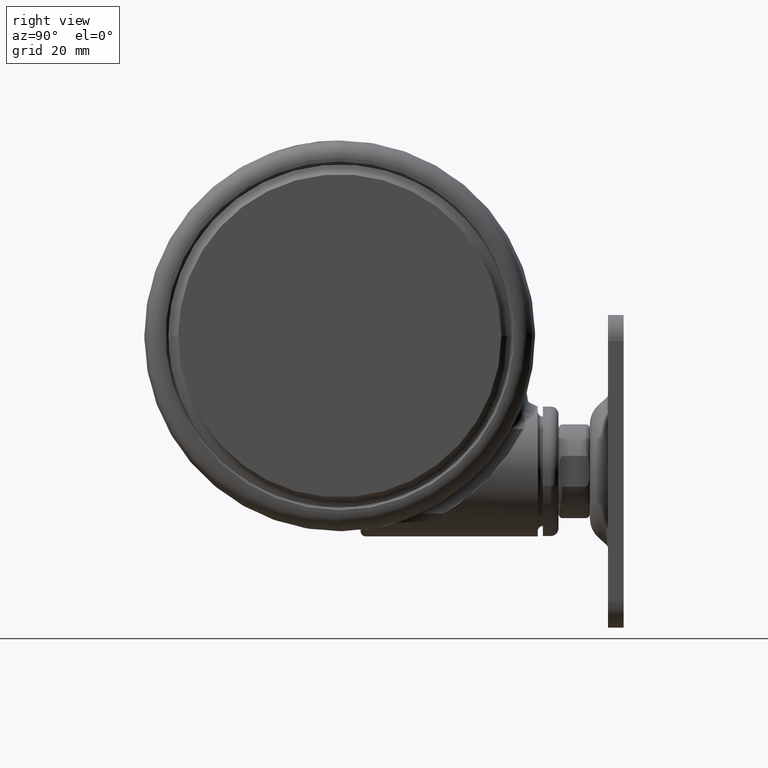
[diagram: clean part render]
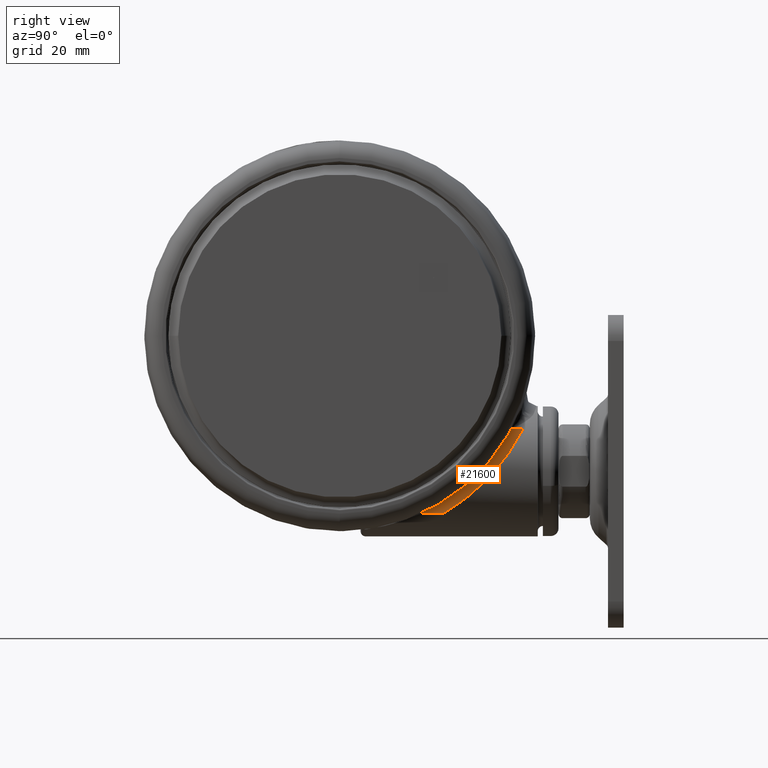
[diagram: same view with one face highlighted and labeled with its STEP entity id]
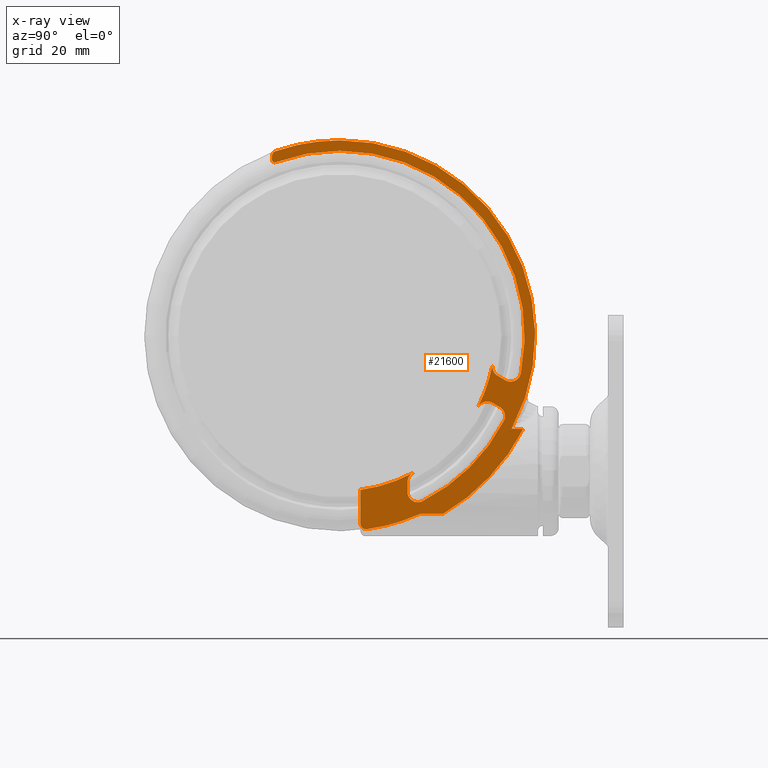
[diagram: x-ray of the same camera — body ghosted, the highlighted face saturated]
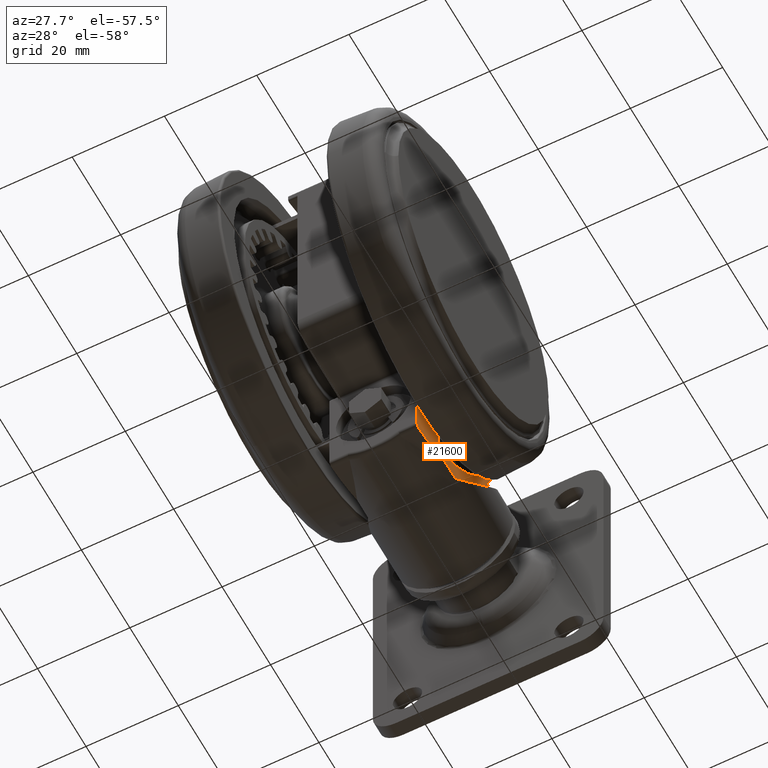
[diagram: same view with one face highlighted and labeled with its STEP entity id]
A machine part, right view. The second image highlights one B-rep face of the part: STEP entity #21600.
The next image is the same camera in x-ray: the body ghosted, the highlighted face saturated — about 0% of this face is hidden behind the body in this view.
A second angle (auxiliary view) of the same face is appended — the face is thin or edge-on in the first view.
In plain terms, the highlighted planar face has unit normal (-1, 0, 0).
Its self-contained STEP definition (entity closure, byte-faithful):
#588 = EDGE_CURVE ( 'NONE', #41972, #9072, #43280, .T. ) ;
#720 = AXIS2_PLACEMENT_3D ( 'NONE', #29062, #1765, #33597 ) ;
#792 = DIRECTION ( 'NONE',  ( 0.0000000000000000000, -0.0000000000000000000, -1.000000000000000000 ) ) ;
#862 = CARTESIAN_POINT ( 'NONE',  ( -14.05808477237056700, 26.33235182304920500, -14.34999999999999600 ) ) ;
#935 = ORIENTED_EDGE ( 'NONE', *, *, #24910, .F. ) ;
#1131 = ORIENTED_EDGE ( 'NONE', *, *, #29958, .F. ) ;
#1573 = DIRECTION ( 'NONE',  ( -0.0000000000000000000, 0.0000000000000000000, 1.000000000000000000 ) ) ;
#1612 = EDGE_CURVE ( 'NONE', #26068, #55462, #29674, .T. ) ;
#1765 = DIRECTION ( 'NONE',  ( -0.0000000000000000000, 0.0000000000000000000, 1.000000000000000000 ) ) ;
#1863 = DIRECTION ( 'NONE',  ( 3.275157922644210600E-015, -1.000000000000000000, 0.0000000000000000000 ) ) ;
#2355 = ORIENTED_EDGE ( 'NONE', *, *, #588, .F. ) ;
#2409 = DIRECTION ( 'NONE',  ( 0.0000000000000000000, -0.0000000000000000000, -1.000000000000000000 ) ) ;
#2427 = CARTESIAN_POINT ( 'NONE',  ( -13.00000000000010700, 33.03407331831780900, -14.34999999999999600 ) ) ;
#2588 = DIRECTION ( 'NONE',  ( 0.0000000000000000000, -0.0000000000000000000, -1.000000000000000000 ) ) ;
#2703 = DIRECTION ( 'NONE',  ( 0.0000000000000000000, -0.0000000000000000000, -1.000000000000000000 ) ) ;
#2885 = CIRCLE ( 'NONE', #9080, 37.50000000000000000 ) ;
#2963 = AXIS2_PLACEMENT_3D ( 'NONE', #37020, #9799, #41594 ) ;
#3851 = CARTESIAN_POINT ( 'NONE',  ( -4.000000000000096800, 29.58077923246783700, -14.34999999999999600 ) ) ;
#3855 = CARTESIAN_POINT ( 'NONE',  ( -28.30344973734159100, 12.60606836098540700, -14.34999999999999600 ) ) ;
#4542 = DIRECTION ( 'NONE',  ( 3.275157922644210600E-015, -1.000000000000000000, 0.0000000000000000000 ) ) ;
#4545 = EDGE_CURVE ( 'NONE', #37598, #17954, #54250, .T. ) ;
#4670 = ORIENTED_EDGE ( 'NONE', *, *, #24920, .F. ) ;
#4695 = CARTESIAN_POINT ( 'NONE',  ( 0.0000000000000000000, 0.0000000000000000000, -14.34999999999999600 ) ) ;
#4764 = ORIENTED_EDGE ( 'NONE', *, *, #49392, .T. ) ;
#4888 = VERTEX_POINT ( 'NONE', #57787 ) ;
#5150 = CARTESIAN_POINT ( 'NONE',  ( -19.90164817295301000, 34.11999999999993300, -14.34999999999999600 ) ) ;
#5335 = ORIENTED_EDGE ( 'NONE', *, *, #50924, .T. ) ;
#5380 = CARTESIAN_POINT ( 'NONE',  ( -28.30344973734159800, 14.60606836098540700, -14.34999999999999600 ) ) ;
#5961 = VERTEX_POINT ( 'NONE', #43418 ) ;
#6457 = CIRCLE ( 'NONE', #30181, 1.999999999999998200 ) ;
#6629 = ORIENTED_EDGE ( 'NONE', *, *, #17383, .T. ) ;
#6728 = VECTOR ( 'NONE', #33585, 1000.000000000000000 ) ;
#6877 = EDGE_CURVE ( 'NONE', #37598, #4888, #28518, .T. ) ;
#7009 = DIRECTION ( 'NONE',  ( -3.275157922644210200E-015, 1.000000000000000000, 0.0000000000000000000 ) ) ;
#7014 = CIRCLE ( 'NONE', #23743, 1.000000000000000900 ) ;
#7186 = VERTEX_POINT ( 'NONE', #30077 ) ;
#7820 = CARTESIAN_POINT ( 'NONE',  ( -5.136986301369981700, 37.14648532148818600, -14.34999999999999600 ) ) ;
#8132 = DIRECTION ( 'NONE',  ( -0.0000000000000000000, 0.0000000000000000000, 1.000000000000000000 ) ) ;
#8791 = ORIENTED_EDGE ( 'NONE', *, *, #34759, .T. ) ;
#9072 = VERTEX_POINT ( 'NONE', #21969 ) ;
#9080 = AXIS2_PLACEMENT_3D ( 'NONE', #47056, #19882, #51606 ) ;
#9302 = DIRECTION ( 'NONE',  ( 3.275157922644210600E-015, -1.000000000000000000, 0.0000000000000000000 ) ) ;
#9603 = EDGE_CURVE ( 'NONE', #41972, #51496, #21796, .T. ) ;
#9784 = PLANE ( 'NONE',  #12737 ) ;
#9799 = DIRECTION ( 'NONE',  ( 0.0000000000000000000, 0.0000000000000000000, 1.000000000000000000 ) ) ;
#9969 = DIRECTION ( 'NONE',  ( 3.469446951953614200E-015, -1.000000000000000000, 0.0000000000000000000 ) ) ;
#10187 = CARTESIAN_POINT ( 'NONE',  ( -35.22152182969960400, 17.87999999999988500, -14.34999999999999600 ) ) ;
#10330 = ORIENTED_EDGE ( 'NONE', *, *, #56864, .F. ) ;
#10734 = VERTEX_POINT ( 'NONE', #23685 ) ;
#10878 = ORIENTED_EDGE ( 'NONE', *, *, #51337, .T. ) ;
#11211 = ORIENTED_EDGE ( 'NONE', *, *, #31193, .T. ) ;
#11550 = VERTEX_POINT ( 'NONE', #7820 ) ;
#12706 = EDGE_CURVE ( 'NONE', #14136, #57935, #30069, .T. ) ;
#12718 = ORIENTED_EDGE ( 'NONE', *, *, #14902, .F. ) ;
#12737 = AXIS2_PLACEMENT_3D ( 'NONE', #28080, #792, #32641 ) ;
#13329 = AXIS2_PLACEMENT_3D ( 'NONE', #53441, #26280, #58035 ) ;
#13538 = CARTESIAN_POINT ( 'NONE',  ( 13.00000000000011200, -34.47100230628630900, -14.34999999999999600 ) ) ;
#13816 = DIRECTION ( 'NONE',  ( 3.275157922644210200E-015, -1.000000000000000000, 0.0000000000000000000 ) ) ;
#14028 = VERTEX_POINT ( 'NONE', #35187 ) ;
#14136 = VERTEX_POINT ( 'NONE', #54041 ) ;
#14172 = CARTESIAN_POINT ( 'NONE',  ( 0.0000000000000000000, 0.0000000000000000000, -14.34999999999999600 ) ) ;
#14415 = EDGE_LOOP ( 'NONE', ( #1131, #35232, #33952, #935, #38801, #31520, #2355, #32364, #4670, #6629, #8791, #12718, #32766, #41663, #23973, #4764, #41475, #11211, #35717, #27965, #5335, #10330, #10878, #49233, #16205, #36969, #21724, #30453, #33174, #33574 ) ) ;
#14902 = EDGE_CURVE ( 'NONE', #20528, #5961, #33207, .T. ) ;
#15317 = DIRECTION ( 'NONE',  ( 0.0000000000000000000, -0.0000000000000000000, -1.000000000000000000 ) ) ;
#15453 = DIRECTION ( 'NONE',  ( 0.0000000000000000000, -0.0000000000000000000, -1.000000000000000000 ) ) ;
#15624 = AXIS2_PLACEMENT_3D ( 'NONE', #56361, #29152, #1863 ) ;
#15654 = CARTESIAN_POINT ( 'NONE',  ( 12.50000000000011200, -33.76018364878955700, -14.34999999999999600 ) ) ;
#15784 = LINE ( 'NONE', #2427, #38482 ) ;
#16087 = AXIS2_PLACEMENT_3D ( 'NONE', #49058, #21903, #53653 ) ;
#16205 = ORIENTED_EDGE ( 'NONE', *, *, #17207, .T. ) ;
#16402 = AXIS2_PLACEMENT_3D ( 'NONE', #42517, #15317, #47068 ) ;
#16860 = VERTEX_POINT ( 'NONE', #862 ) ;
#16971 = AXIS2_PLACEMENT_3D ( 'NONE', #59028, #31788, #4542 ) ;
#17207 = EDGE_CURVE ( 'NONE', #34529, #10734, #22358, .T. ) ;
#17383 = EDGE_CURVE ( 'NONE', #45787, #21031, #21598, .T. ) ;
#17954 = VERTEX_POINT ( 'NONE', #40934 ) ;
#18779 = DIRECTION ( 'NONE',  ( 3.275157922644209800E-015, -1.000000000000000000, 0.0000000000000000000 ) ) ;
#19048 = CARTESIAN_POINT ( 'NONE',  ( -34.75872781354956900, 7.216705673891416600, -14.34999999999999600 ) ) ;
#19356 = EDGE_CURVE ( 'NONE', #20528, #4888, #49151, .T. ) ;
#19882 = DIRECTION ( 'NONE',  ( 0.0000000000000000000, -0.0000000000000000000, -1.000000000000000000 ) ) ;
#20062 = LINE ( 'NONE', #54954, #42794 ) ;
#20230 = DIRECTION ( 'NONE',  ( 3.469446951953611000E-015, -1.000000000000000000, 0.0000000000000000000 ) ) ;
#20528 = VERTEX_POINT ( 'NONE', #36130 ) ;
#20538 = DIRECTION ( 'NONE',  ( 0.0000000000000000000, 0.0000000000000000000, 1.000000000000000000 ) ) ;
#20755 = EDGE_CURVE ( 'NONE', #55462, #9072, #37670, .T. ) ;
#21031 = VERTEX_POINT ( 'NONE', #3855 ) ;
#21126 = VECTOR ( 'NONE', #30490, 1000.000000000000100 ) ;
#21598 = CIRCLE ( 'NONE', #27408, 2.000000000000000000 ) ;
#21600 = ADVANCED_FACE ( 'NONE', ( #56759 ), #9784, .F. ) ;
#21724 = ORIENTED_EDGE ( 'NONE', *, *, #35876, .T. ) ;
#21796 = CIRCLE ( 'NONE', #13329, 2.000000000000000000 ) ;
#21903 = DIRECTION ( 'NONE',  ( 0.0000000000000000000, -0.0000000000000000000, -1.000000000000000000 ) ) ;
#21969 = CARTESIAN_POINT ( 'NONE',  ( -31.80048962687072800, 8.542181513917125100, -14.34999999999999600 ) ) ;
#22046 = CARTESIAN_POINT ( 'NONE',  ( -29.73390573391090200, 15.43194251566860200, -14.34999999999999600 ) ) ;
#22358 = CIRCLE ( 'NONE', #46749, 39.50000000000000000 ) ;
#22373 = DIRECTION ( 'NONE',  ( 0.0000000000000000000, 0.0000000000000000000, 1.000000000000000000 ) ) ;
#22938 = VERTEX_POINT ( 'NONE', #40148 ) ;
#23318 = CARTESIAN_POINT ( 'NONE',  ( 0.0000000000000000000, 0.0000000000000000000, -14.34999999999999600 ) ) ;
#23685 = CARTESIAN_POINT ( 'NONE',  ( -35.22152182969960400, 17.87999999999988500, -14.34999999999999600 ) ) ;
#23743 = AXIS2_PLACEMENT_3D ( 'NONE', #35341, #8132, #39928 ) ;
#23847 = CARTESIAN_POINT ( 'NONE',  ( -29.32648716390971800, 5.565936635018193400, -14.34999999999999600 ) ) ;
#23865 = CARTESIAN_POINT ( 'NONE',  ( -19.90164817295301000, 34.11999999999993300, -14.34999999999999600 ) ) ;
#23973 = ORIENTED_EDGE ( 'NONE', *, *, #4545, .T. ) ;
#24267 = CARTESIAN_POINT ( 'NONE',  ( -26.52615305053834400, 13.68888981398475300, -14.34999999999999600 ) ) ;
#24373 = AXIS2_PLACEMENT_3D ( 'NONE', #47715, #20538, #52274 ) ;
#24743 = VERTEX_POINT ( 'NONE', #40224 ) ;
#24811 = CIRCLE ( 'NONE', #46584, 1.000000000000000900 ) ;
#24910 = EDGE_CURVE ( 'NONE', #26068, #24743, #55061, .T. ) ;
#24919 = VERTEX_POINT ( 'NONE', #41415 ) ;
#24920 = EDGE_CURVE ( 'NONE', #45787, #51496, #53592, .T. ) ;
#25141 = CIRCLE ( 'NONE', #24373, 29.85000000000000100 ) ;
#25369 = VERTEX_POINT ( 'NONE', #27063 ) ;
#26068 = VERTEX_POINT ( 'NONE', #19048 ) ;
#26124 = AXIS2_PLACEMENT_3D ( 'NONE', #49534, #22373, #54120 ) ;
#26149 = EDGE_CURVE ( 'NONE', #22938, #14136, #50637, .T. ) ;
#26280 = DIRECTION ( 'NONE',  ( 0.0000000000000000000, -0.0000000000000000000, -1.000000000000000000 ) ) ;
#26535 = CIRCLE ( 'NONE', #720, 0.5000000000000004400 ) ;
#26629 = DIRECTION ( 'NONE',  ( 3.469446951953614200E-015, -1.000000000000000000, 0.0000000000000000000 ) ) ;
#26717 = DIRECTION ( 'NONE',  ( 0.0000000000000000000, 0.0000000000000000000, 1.000000000000000000 ) ) ;
#26882 = VECTOR ( 'NONE', #45899, 1000.000000000000000 ) ;
#27063 = CARTESIAN_POINT ( 'NONE',  ( -13.00000000000009100, 28.09666350298550700, -14.34999999999999600 ) ) ;
#27114 = VERTEX_POINT ( 'NONE', #13538 ) ;
#27408 = AXIS2_PLACEMENT_3D ( 'NONE', #5380, #37196, #9969 ) ;
#27452 = AXIS2_PLACEMENT_3D ( 'NONE', #29681, #2409, #34233 ) ;
#27856 = DIRECTION ( 'NONE',  ( 3.275157922644210600E-015, -1.000000000000000000, 0.0000000000000000000 ) ) ;
#27965 = ORIENTED_EDGE ( 'NONE', *, *, #48005, .F. ) ;
#28080 = CARTESIAN_POINT ( 'NONE',  ( 0.0000000000000000000, 0.0000000000000000000, -14.34999999999999600 ) ) ;
#28222 = LINE ( 'NONE', #10187, #48039 ) ;
#28322 = EDGE_CURVE ( 'NONE', #22938, #27114, #7014, .T. ) ;
#28518 = CIRCLE ( 'NONE', #26124, 35.50000000000000000 ) ;
#28721 = AXIS2_PLACEMENT_3D ( 'NONE', #29982, #2703, #34525 ) ;
#28860 = CARTESIAN_POINT ( 'NONE',  ( -5.000000000000119000, 36.15591237958183500, -14.34999999999999600 ) ) ;
#29062 = CARTESIAN_POINT ( 'NONE',  ( 12.50000000000011200, -33.76018364878955700, -14.34999999999999600 ) ) ;
#29115 = DIRECTION ( 'NONE',  ( -0.8660254037844411500, 0.4999999999999957300, 0.0000000000000000000 ) ) ;
#29149 = AXIS2_PLACEMENT_3D ( 'NONE', #23318, #55067, #27856 ) ;
#29152 = DIRECTION ( 'NONE',  ( 0.0000000000000000000, -0.0000000000000000000, -1.000000000000000000 ) ) ;
#29674 = CIRCLE ( 'NONE', #16402, 2.000000000000000000 ) ;
#29681 = CARTESIAN_POINT ( 'NONE',  ( -15.00000000000009100, 28.09666350298550000, -14.34999999999999600 ) ) ;
#29870 = CARTESIAN_POINT ( 'NONE',  ( -15.00000000000009800, 29.95413160150025100, -14.34999999999999600 ) ) ;
#29958 = EDGE_CURVE ( 'NONE', #7186, #27114, #43004, .T. ) ;
#29982 = CARTESIAN_POINT ( 'NONE',  ( -28.30344973734159800, 14.60606836098540700, -14.34999999999999600 ) ) ;
#30069 = CIRCLE ( 'NONE', #58754, 37.50000000000000000 ) ;
#30077 = CARTESIAN_POINT ( 'NONE',  ( 13.00000000000011000, -33.76018364878955700, -14.34999999999999600 ) ) ;
#30181 = AXIS2_PLACEMENT_3D ( 'NONE', #29870, #2588, #34418 ) ;
#30453 = ORIENTED_EDGE ( 'NONE', *, *, #12706, .F. ) ;
#30490 = DIRECTION ( 'NONE',  ( 0.8660254037844400400, -0.4999999999999974500, 0.0000000000000000000 ) ) ;
#30591 = EDGE_CURVE ( 'NONE', #7186, #43009, #38659, .T. ) ;
#31192 = EDGE_CURVE ( 'NONE', #47908, #16860, #25141, .T. ) ;
#31193 = EDGE_CURVE ( 'NONE', #25369, #16860, #58541, .T. ) ;
#31520 = ORIENTED_EDGE ( 'NONE', *, *, #20755, .T. ) ;
#31603 = EDGE_CURVE ( 'NONE', #43009, #24743, #26535, .T. ) ;
#31711 = AXIS2_PLACEMENT_3D ( 'NONE', #42645, #15453, #47191 ) ;
#31788 = DIRECTION ( 'NONE',  ( 0.0000000000000000000, 0.0000000000000000000, 1.000000000000000000 ) ) ;
#32364 = ORIENTED_EDGE ( 'NONE', *, *, #9603, .T. ) ;
#32493 = CARTESIAN_POINT ( 'NONE',  ( 12.50000000000011000, -33.26018364878955700, -14.34999999999999600 ) ) ;
#32641 = DIRECTION ( 'NONE',  ( 3.275157922644210200E-015, -1.000000000000000000, 0.0000000000000000000 ) ) ;
#32651 = VECTOR ( 'NONE', #29115, 1000.000000000000000 ) ;
#32766 = ORIENTED_EDGE ( 'NONE', *, *, #19356, .T. ) ;
#33174 = ORIENTED_EDGE ( 'NONE', *, *, #26149, .F. ) ;
#33207 = LINE ( 'NONE', #39402, #21126 ) ;
#33404 = DIRECTION ( 'NONE',  ( 2.602085213965208300E-015, -1.000000000000000000, 0.0000000000000000000 ) ) ;
#33574 = ORIENTED_EDGE ( 'NONE', *, *, #28322, .T. ) ;
#33585 = DIRECTION ( 'NONE',  ( 3.309731685012663500E-015, -1.000000000000000000, 0.0000000000000000000 ) ) ;
#33597 = DIRECTION ( 'NONE',  ( 3.469446951953611000E-015, -1.000000000000000000, 0.0000000000000000000 ) ) ;
#33952 = ORIENTED_EDGE ( 'NONE', *, *, #31603, .T. ) ;
#34233 = DIRECTION ( 'NONE',  ( 3.469446951953611000E-015, -1.000000000000000000, 0.0000000000000000000 ) ) ;
#34418 = DIRECTION ( 'NONE',  ( 3.469446951953617300E-015, -1.000000000000000000, 0.0000000000000000000 ) ) ;
#34525 = DIRECTION ( 'NONE',  ( 3.469446951953614200E-015, -1.000000000000000000, 0.0000000000000000000 ) ) ;
#34529 = VERTEX_POINT ( 'NONE', #23865 ) ;
#34759 = EDGE_CURVE ( 'NONE', #21031, #5961, #39671, .T. ) ;
#35187 = CARTESIAN_POINT ( 'NONE',  ( -13.00000000000009800, 29.95413160150025800, -14.34999999999999600 ) ) ;
#35232 = ORIENTED_EDGE ( 'NONE', *, *, #30591, .T. ) ;
#35341 = CARTESIAN_POINT ( 'NONE',  ( 12.00000000000011400, -34.47100230628630900, -14.34999999999999600 ) ) ;
#35717 = ORIENTED_EDGE ( 'NONE', *, *, #31192, .F. ) ;
#35876 = EDGE_CURVE ( 'NONE', #44617, #57935, #40379, .T. ) ;
#35894 = EDGE_CURVE ( 'NONE', #24919, #34529, #55317, .T. ) ;
#36130 = CARTESIAN_POINT ( 'NONE',  ( -30.73390573391089500, 13.69989170809971800, -14.34999999999999600 ) ) ;
#36508 = DIRECTION ( 'NONE',  ( 0.0000000000000000000, -0.0000000000000000000, -1.000000000000000000 ) ) ;
#36699 = CARTESIAN_POINT ( 'NONE',  ( -32.96294282979000200, 17.87999999999989200, -14.34999999999999600 ) ) ;
#36884 = AXIS2_PLACEMENT_3D ( 'NONE', #15654, #47394, #20230 ) ;
#36965 = CARTESIAN_POINT ( 'NONE',  ( -30.29141092698577300, 7.670914520310240900, -14.34999999999999600 ) ) ;
#36969 = ORIENTED_EDGE ( 'NONE', *, *, #45266, .T. ) ;
#37020 = CARTESIAN_POINT ( 'NONE',  ( 0.0000000000000000000, 0.0000000000000000000, -14.34999999999999600 ) ) ;
#37196 = DIRECTION ( 'NONE',  ( 0.0000000000000000000, -0.0000000000000000000, -1.000000000000000000 ) ) ;
#37401 = DIRECTION ( 'NONE',  ( 1.000000000000000000, 6.347396663987760900E-015, 0.0000000000000000000 ) ) ;
#37406 = CARTESIAN_POINT ( 'NONE',  ( -15.89552238805980300, 31.74243796576895000, -14.34999999999999600 ) ) ;
#37598 = VERTEX_POINT ( 'NONE', #37406 ) ;
#37670 = CIRCLE ( 'NONE', #31711, 2.000000000000000000 ) ;
#38482 = VECTOR ( 'NONE', #7009, 1000.000000000000000 ) ;
#38659 = CIRCLE ( 'NONE', #36884, 0.5000000000000004400 ) ;
#38801 = ORIENTED_EDGE ( 'NONE', *, *, #1612, .T. ) ;
#39402 = CARTESIAN_POINT ( 'NONE',  ( -27.42353499972799100, 11.78864827360177100, -14.34999999999999600 ) ) ;
#39671 = CIRCLE ( 'NONE', #28721, 2.000000000000000000 ) ;
#39928 = DIRECTION ( 'NONE',  ( 0.0000000000000000000, -1.000000000000000000, 0.0000000000000000000 ) ) ;
#40043 = CARTESIAN_POINT ( 'NONE',  ( -4.000000000000119000, 36.15591237958183500, -14.34999999999999600 ) ) ;
#40148 = CARTESIAN_POINT ( 'NONE',  ( 12.32876712328777700, -35.41541332837635300, -14.34999999999999600 ) ) ;
#40224 = CARTESIAN_POINT ( 'NONE',  ( 12.32638888888901000, -33.29129220922301600, -14.34999999999999600 ) ) ;
#40379 = CIRCLE ( 'NONE', #29149, 37.50000000000000000 ) ;
#40934 = CARTESIAN_POINT ( 'NONE',  ( -15.00000000000010500, 31.95413160150025100, -14.34999999999999600 ) ) ;
#41324 = VERTEX_POINT ( 'NONE', #40043 ) ;
#41415 = CARTESIAN_POINT ( 'NONE',  ( -15.55877887239235900, 34.11999999999994800, -14.34999999999999600 ) ) ;
#41475 = ORIENTED_EDGE ( 'NONE', *, *, #48149, .F. ) ;
#41594 = DIRECTION ( 'NONE',  ( 3.275157922644210600E-015, -1.000000000000000000, 0.0000000000000000000 ) ) ;
#41663 = ORIENTED_EDGE ( 'NONE', *, *, #6877, .F. ) ;
#41972 = VERTEX_POINT ( 'NONE', #36965 ) ;
#42517 = CARTESIAN_POINT ( 'NONE',  ( -32.80048962687067900, 6.810130706348242100, -14.34999999999999600 ) ) ;
#42645 = CARTESIAN_POINT ( 'NONE',  ( -32.80048962687067900, 6.810130706348242100, -14.34999999999999600 ) ) ;
#42729 = CARTESIAN_POINT ( 'NONE',  ( 13.00000000000011400, -35.17456467392305800, -14.34999999999999600 ) ) ;
#42794 = VECTOR ( 'NONE', #13816, 1000.000000000000000 ) ;
#43004 = LINE ( 'NONE', #42729, #6728 ) ;
#43009 = VERTEX_POINT ( 'NONE', #32493 ) ;
#43280 = LINE ( 'NONE', #56324, #32651 ) ;
#43418 = CARTESIAN_POINT ( 'NONE',  ( -29.30344973734159500, 12.87401755341652400, -14.34999999999999600 ) ) ;
#44591 = AXIS2_PLACEMENT_3D ( 'NONE', #22046, #53798, #26629 ) ;
#44617 = VERTEX_POINT ( 'NONE', #36699 ) ;
#45266 = EDGE_CURVE ( 'NONE', #10734, #44617, #28222, .T. ) ;
#45380 = CIRCLE ( 'NONE', #16971, 37.50000000000000000 ) ;
#45787 = VERTEX_POINT ( 'NONE', #24267 ) ;
#45899 = DIRECTION ( 'NONE',  ( -1.000000000000000000, -1.677390772937115200E-015, 0.0000000000000000000 ) ) ;
#45954 = DIRECTION ( 'NONE',  ( 0.0000000000000000000, 0.0000000000000000000, 1.000000000000000000 ) ) ;
#46584 = AXIS2_PLACEMENT_3D ( 'NONE', #28860, #1573, #33404 ) ;
#46749 = AXIS2_PLACEMENT_3D ( 'NONE', #53903, #26717, #58482 ) ;
#47056 = CARTESIAN_POINT ( 'NONE',  ( 0.0000000000000000000, 0.0000000000000000000, -14.34999999999999600 ) ) ;
#47068 = DIRECTION ( 'NONE',  ( 3.469446951953614200E-015, -1.000000000000000000, 0.0000000000000000000 ) ) ;
#47191 = DIRECTION ( 'NONE',  ( 3.469446951953614200E-015, -1.000000000000000000, 0.0000000000000000000 ) ) ;
#47394 = DIRECTION ( 'NONE',  ( -0.0000000000000000000, 0.0000000000000000000, 1.000000000000000000 ) ) ;
#47715 = CARTESIAN_POINT ( 'NONE',  ( 0.0000000000000000000, 0.0000000000000000000, -14.34999999999999600 ) ) ;
#47908 = VERTEX_POINT ( 'NONE', #3851 ) ;
#48005 = EDGE_CURVE ( 'NONE', #41324, #47908, #20062, .T. ) ;
#48039 = VECTOR ( 'NONE', #37401, 1000.000000000000000 ) ;
#48127 = VERTEX_POINT ( 'NONE', #55525 ) ;
#48149 = EDGE_CURVE ( 'NONE', #25369, #14028, #15784, .T. ) ;
#49058 = CARTESIAN_POINT ( 'NONE',  ( -15.00000000000009800, 29.95413160150025100, -14.34999999999999600 ) ) ;
#49151 = CIRCLE ( 'NONE', #44591, 2.000000000000000000 ) ;
#49233 = ORIENTED_EDGE ( 'NONE', *, *, #35894, .T. ) ;
#49392 = EDGE_CURVE ( 'NONE', #17954, #14028, #6457, .T. ) ;
#49534 = CARTESIAN_POINT ( 'NONE',  ( 0.0000000000000000000, 0.0000000000000000000, -14.34999999999999600 ) ) ;
#50637 = CIRCLE ( 'NONE', #15624, 37.50000000000000000 ) ;
#50924 = EDGE_CURVE ( 'NONE', #41324, #11550, #24811, .T. ) ;
#51337 = EDGE_CURVE ( 'NONE', #48127, #24919, #45380, .T. ) ;
#51496 = VERTEX_POINT ( 'NONE', #23847 ) ;
#51606 = DIRECTION ( 'NONE',  ( 3.275157922644210600E-015, -1.000000000000000000, 0.0000000000000000000 ) ) ;
#52274 = DIRECTION ( 'NONE',  ( 3.275157922644210600E-015, -1.000000000000000000, 0.0000000000000000000 ) ) ;
#52689 = CARTESIAN_POINT ( 'NONE',  ( -32.80048962687068600, 8.810130706348243000, -14.34999999999999600 ) ) ;
#53441 = CARTESIAN_POINT ( 'NONE',  ( -31.29141092698576500, 5.938863712741357000, -14.34999999999999600 ) ) ;
#53592 = CIRCLE ( 'NONE', #2963, 29.85000000000000100 ) ;
#53653 = DIRECTION ( 'NONE',  ( 3.469446951953617300E-015, -1.000000000000000000, 0.0000000000000000000 ) ) ;
#53798 = DIRECTION ( 'NONE',  ( 0.0000000000000000000, -0.0000000000000000000, -1.000000000000000000 ) ) ;
#53903 = CARTESIAN_POINT ( 'NONE',  ( 0.0000000000000000000, 0.0000000000000000000, -14.34999999999999600 ) ) ;
#54041 = CARTESIAN_POINT ( 'NONE',  ( 1.228184220991578900E-013, -37.50000000000000000, -14.34999999999999600 ) ) ;
#54120 = DIRECTION ( 'NONE',  ( 3.275157922644209800E-015, -1.000000000000000000, 0.0000000000000000000 ) ) ;
#54250 = CIRCLE ( 'NONE', #16087, 1.999999999999998200 ) ;
#54954 = CARTESIAN_POINT ( 'NONE',  ( -4.000000000000049700, 14.99999999999998600, -14.34999999999999600 ) ) ;
#55061 = CIRCLE ( 'NONE', #55918, 35.50000000000000000 ) ;
#55067 = DIRECTION ( 'NONE',  ( 0.0000000000000000000, 0.0000000000000000000, 1.000000000000000000 ) ) ;
#55317 = LINE ( 'NONE', #5150, #26882 ) ;
#55462 = VERTEX_POINT ( 'NONE', #52689 ) ;
#55525 = CARTESIAN_POINT ( 'NONE',  ( -15.54991970907156200, 34.12403840464120500, -14.34999999999999600 ) ) ;
#55728 = CARTESIAN_POINT ( 'NONE',  ( -32.96513305055641000, 17.87596159536909500, -14.34999999999999600 ) ) ;
#55918 = AXIS2_PLACEMENT_3D ( 'NONE', #14172, #45954, #18779 ) ;
#56324 = CARTESIAN_POINT ( 'NONE',  ( -34.10033870799529200, 9.869999999999889100, -14.34999999999999600 ) ) ;
#56361 = CARTESIAN_POINT ( 'NONE',  ( 0.0000000000000000000, 0.0000000000000000000, -14.34999999999999600 ) ) ;
#56759 = FACE_OUTER_BOUND ( 'NONE', #14415, .T. ) ;
#56864 = EDGE_CURVE ( 'NONE', #48127, #11550, #2885, .T. ) ;
#57787 = CARTESIAN_POINT ( 'NONE',  ( -31.50906428518915400, 16.35325251660404800, -14.34999999999999600 ) ) ;
#57935 = VERTEX_POINT ( 'NONE', #55728 ) ;
#58035 = DIRECTION ( 'NONE',  ( 3.469446951953614200E-015, -1.000000000000000000, 0.0000000000000000000 ) ) ;
#58482 = DIRECTION ( 'NONE',  ( 3.275157922644210600E-015, -1.000000000000000000, 0.0000000000000000000 ) ) ;
#58541 = CIRCLE ( 'NONE', #27452, 2.000000000000001800 ) ;
#58754 = AXIS2_PLACEMENT_3D ( 'NONE', #4695, #36508, #9302 ) ;
#59028 = CARTESIAN_POINT ( 'NONE',  ( 0.0000000000000000000, 0.0000000000000000000, -14.34999999999999600 ) ) ;